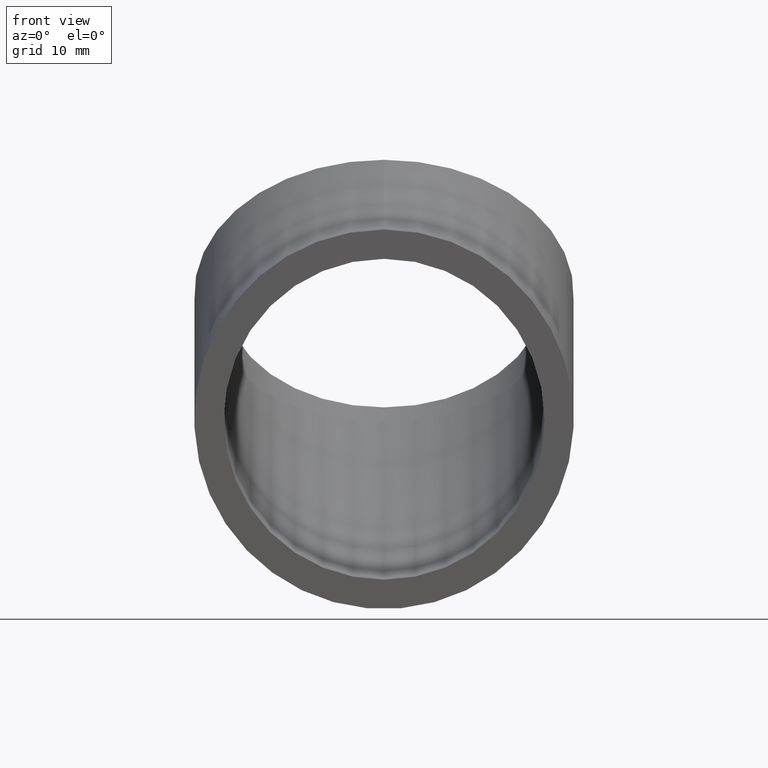
[diagram: clean part render]
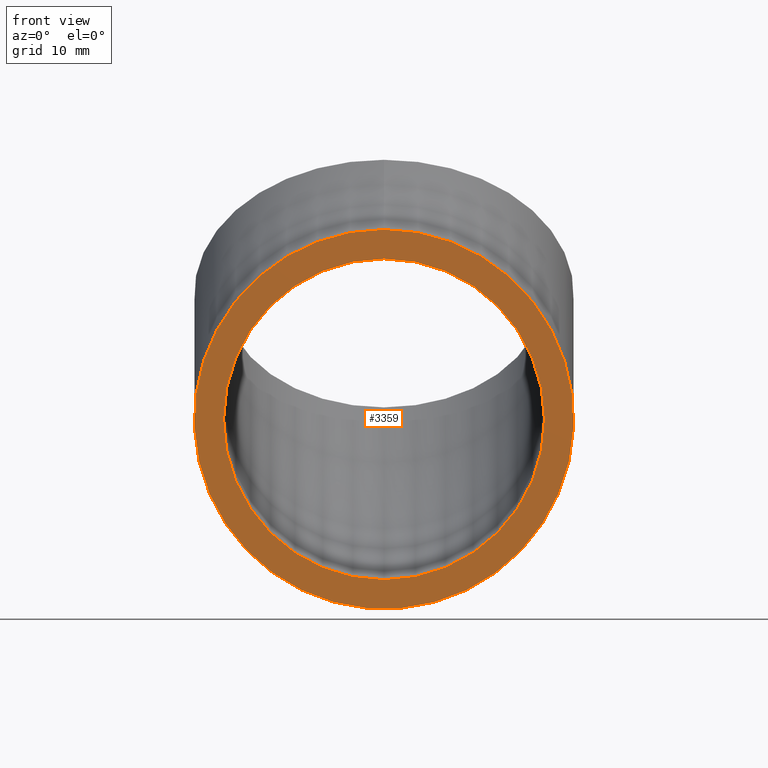
[diagram: same view with one face highlighted and labeled with its STEP entity id]
A machine part, front view. The second image highlights one B-rep face of the part: STEP entity #3359.
In plain terms, the highlighted planar face has unit normal (0, 1, 0).
Its self-contained STEP definition (entity closure, byte-faithful):
#173 = VERTEX_POINT ( 'NONE', #347 ) ;
#347 = CARTESIAN_POINT ( 'NONE',  ( 0.000000000000000000, 0.000000000000000000, -23.75000000000000000 ) ) ;
#456 = CARTESIAN_POINT ( 'NONE',  ( 0.000000000000000000, 0.000000000000000000, -21.14999999999999858 ) ) ;
#1891 = CIRCLE ( 'NONE', #8774, 14.24999999999999822 ) ;
#2582 = DIRECTION ( 'NONE',  ( 0.000000000000000000, 1.000000000000000000, 0.000000000000000000 ) ) ;
#2593 = EDGE_CURVE ( 'NONE', #6014, #6014, #9282, .T. ) ;
#2708 = DIRECTION ( 'NONE',  ( 0.000000000000000000, 1.000000000000000000, 0.000000000000000000 ) ) ;
#3359 = ADVANCED_FACE ( 'NONE', ( #9038, #3704 ), #6712, .F. ) ;
#3418 = DIRECTION ( 'NONE',  ( 0.000000000000000000, -0.000000000000000000, 1.000000000000000000 ) ) ;
#3687 = AXIS2_PLACEMENT_3D ( 'NONE', #9503, #2708, #5344 ) ;
#3704 = FACE_OUTER_BOUND ( 'NONE', #5195, .T. ) ;
#5195 = EDGE_LOOP ( 'NONE', ( #8194 ) ) ;
#5302 = DIRECTION ( 'NONE',  ( 0.000000000000000000, 1.000000000000000000, 0.000000000000000000 ) ) ;
#5344 = DIRECTION ( 'NONE',  ( 0.000000000000000000, 0.000000000000000000, 1.000000000000000000 ) ) ;
#5824 = ORIENTED_EDGE ( 'NONE', *, *, #10149, .T. ) ;
#5906 = AXIS2_PLACEMENT_3D ( 'NONE', #6745, #2582, #3418 ) ;
#6014 = VERTEX_POINT ( 'NONE', #456 ) ;
#6153 = DIRECTION ( 'NONE',  ( 0.000000000000000000, 0.000000000000000000, 1.000000000000000000 ) ) ;
#6712 = PLANE ( 'NONE',  #5906 ) ;
#6745 = CARTESIAN_POINT ( 'NONE',  ( 0.000000000000000000, 0.000000000000000000, -38.00000000000000000 ) ) ;
#8194 = ORIENTED_EDGE ( 'NONE', *, *, #2593, .F. ) ;
#8774 = AXIS2_PLACEMENT_3D ( 'NONE', #10484, #5302, #6153 ) ;
#9038 = FACE_BOUND ( 'NONE', #9129, .T. ) ;
#9129 = EDGE_LOOP ( 'NONE', ( #5824 ) ) ;
#9282 = CIRCLE ( 'NONE', #3687, 16.85000000000000142 ) ;
#9503 = CARTESIAN_POINT ( 'NONE',  ( 0.000000000000000000, 0.000000000000000000, -38.00000000000000000 ) ) ;
#10149 = EDGE_CURVE ( 'NONE', #173, #173, #1891, .T. ) ;
#10484 = CARTESIAN_POINT ( 'NONE',  ( 0.000000000000000000, 0.000000000000000000, -38.00000000000000000 ) ) ;